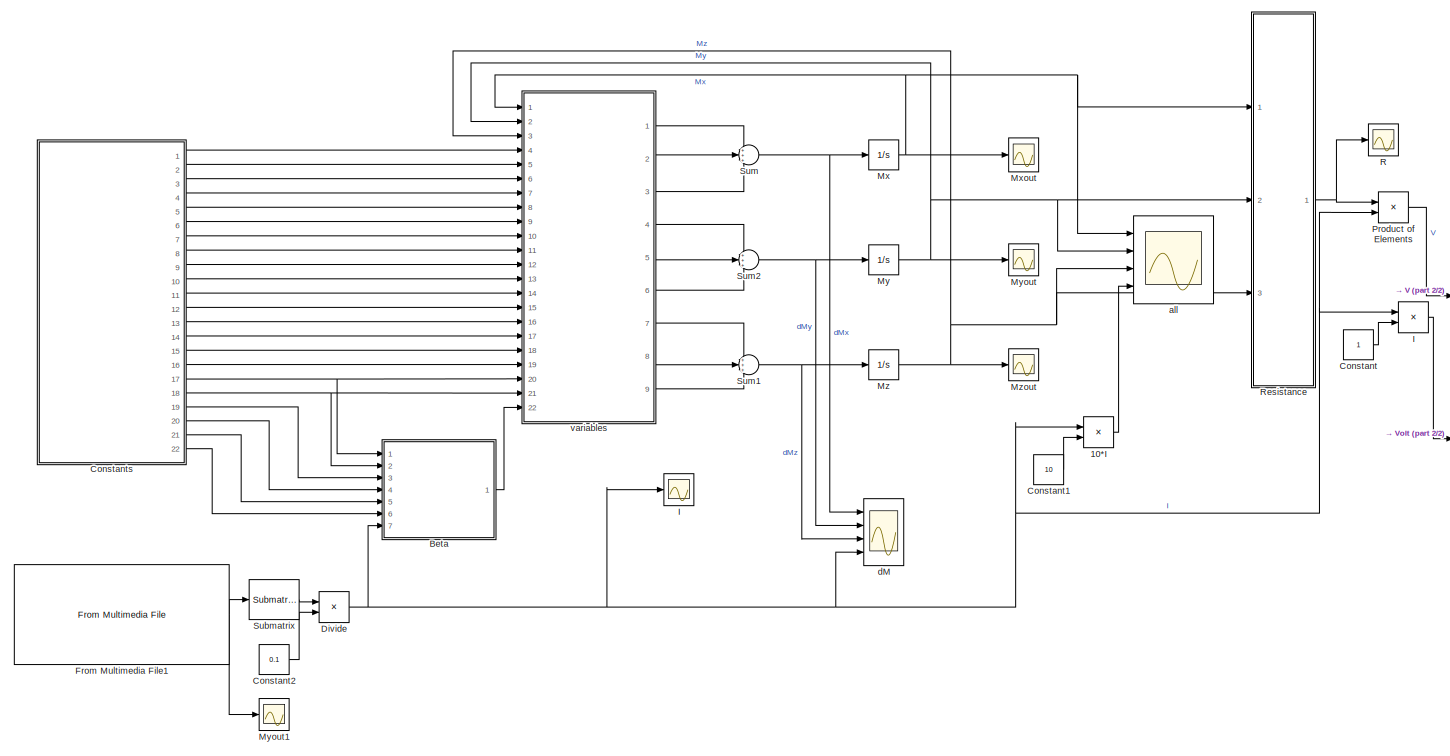
[diagram: root canvas - part 1/2, most of the canvas]
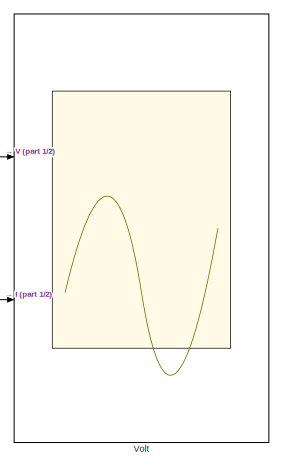
[diagram: root canvas - part 2/2, middle right region]
MODEL slx_35717b3a5d22
KIND model
CONFIG AbsTol = 1.0E-6
CONFIG EnableMultiTasking = off
CONFIG FixedStep = 1.0E-10
CONFIG MaxStep = 1.0E-10
CONFIG MinStep = auto
CONFIG RelTol = 1.0E-5
CONFIG SampleTimeConstraint = Unconstrained
CONFIG Solver = ode45
CONFIG SolverName = ode45
CONFIG StartTime = 0.0
CONFIG StopTime = 0.000000025
BLOCK [Product] 10*I
  InputSameDT = off
  OutDataTypeStr = Inherit: Inherit via internal rule
  Ports = [2, 1]
  RndMeth = Floor
  SaturateOnIntegerOverflow = off
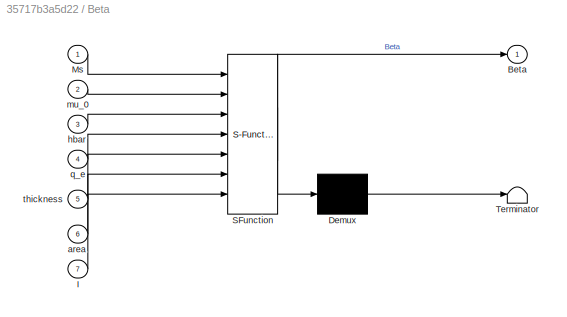
BLOCK [SubSystem] Beta
  ErrorFcn = Stateflow.Translate.translate
  PermitHierarchicalResolution = ExplicitOnly
  Ports = [7, 1]
  RequestExecContextInheritance = off
  SFBlockType = MATLAB Function
  TreatAsAtomicUnit = on
BLOCK [Demux] Beta/ Demux 
  Outputs = 1
  Ports = [1, 1]
BLOCK [S-Function] Beta/ SFunction 
  EnableBusSupport = on
  FunctionName = sf_sfun
  PortCounts = [7 2]
  Ports = [7, 2]
  SFcnIsStateOwnerBlock = off
  SFunctionDeploymentMode = off
  Tag = Stateflow S-Function 1
BLOCK [Terminator] Beta/ Terminator 
BLOCK [Outport] Beta/Beta
  IconDisplay = Port number
  VectorParamsAs1DForOutWhenUnconnected = off
BLOCK [Inport] Beta/I
  IconDisplay = Port number
  Port = 7
BLOCK [Inport] Beta/Ms
  IconDisplay = Port number
BLOCK [Inport] Beta/area
  IconDisplay = Port number
  Port = 6
BLOCK [Inport] Beta/hbar
  IconDisplay = Port number
  Port = 3
BLOCK [Inport] Beta/mu_0
  IconDisplay = Port number
  Port = 2
BLOCK [Inport] Beta/q_e
  IconDisplay = Port number
  Port = 4
BLOCK [Inport] Beta/thickness
  IconDisplay = Port number
  Port = 5
BLOCK [Constant] Constant
BLOCK [Constant] Constant1
  Value = 10
BLOCK [Constant] Constant2
  Value = 0.1
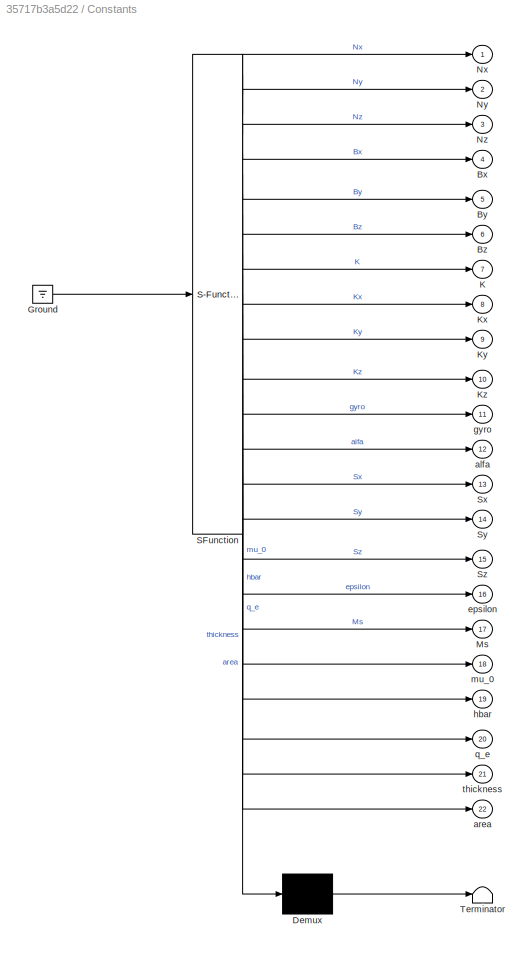
BLOCK [SubSystem] Constants
  ErrorFcn = Stateflow.Translate.translate
  PermitHierarchicalResolution = ExplicitOnly
  Ports = [0, 22]
  RequestExecContextInheritance = off
  SFBlockType = MATLAB Function
  TreatAsAtomicUnit = on
BLOCK [Demux] Constants/ Demux 
  Outputs = 1
  Ports = [1, 1]
BLOCK [Ground] Constants/ Ground 
BLOCK [S-Function] Constants/ SFunction 
  EnableBusSupport = on
  FunctionName = sf_sfun
  PortCounts = [1 23]
  Ports = [1, 23]
  SFcnIsStateOwnerBlock = off
  SFunctionDeploymentMode = off
  Tag = Stateflow S-Function 2
BLOCK [Terminator] Constants/ Terminator 
BLOCK [Outport] Constants/Bx
  IconDisplay = Port number
  Port = 4
BLOCK [Outport] Constants/By
  IconDisplay = Port number
  Port = 5
BLOCK [Outport] Constants/Bz
  IconDisplay = Port number
  Port = 6
BLOCK [Outport] Constants/K
  IconDisplay = Port number
  Port = 7
BLOCK [Outport] Constants/Kx
  IconDisplay = Port number
  Port = 8
BLOCK [Outport] Constants/Ky
  IconDisplay = Port number
  Port = 9
BLOCK [Outport] Constants/Kz
  IconDisplay = Port number
  Port = 10
BLOCK [Outport] Constants/Ms
  IconDisplay = Port number
  Port = 17
BLOCK [Outport] Constants/Nx
  IconDisplay = Port number
BLOCK [Outport] Constants/Ny
  IconDisplay = Port number
  Port = 2
BLOCK [Outport] Constants/Nz
  IconDisplay = Port number
  Port = 3
BLOCK [Outport] Constants/Sx
  IconDisplay = Port number
  Port = 13
BLOCK [Outport] Constants/Sy
  IconDisplay = Port number
  Port = 14
BLOCK [Outport] Constants/Sz
  IconDisplay = Port number
  Port = 15
BLOCK [Outport] Constants/alfa
  IconDisplay = Port number
  Port = 12
BLOCK [Outport] Constants/area
  IconDisplay = Port number
  Port = 22
BLOCK [Outport] Constants/epsilon
  IconDisplay = Port number
  Port = 16
BLOCK [Outport] Constants/gyro
  IconDisplay = Port number
  Port = 11
BLOCK [Outport] Constants/hbar
  IconDisplay = Port number
  Port = 19
BLOCK [Outport] Constants/mu_0
  IconDisplay = Port number
  Port = 18
BLOCK [Outport] Constants/q_e
  IconDisplay = Port number
  Port = 20
BLOCK [Outport] Constants/thickness
  IconDisplay = Port number
  Port = 21
BLOCK [Product] Divide
  InputSameDT = off
  OutDataTypeStr = Inherit: Inherit via internal rule
  Ports = [2, 1]
  RndMeth = Floor
  SaturateOnIntegerOverflow = off
BLOCK [Reference] From Multimedia File1  REF=dspvision/From Multimedia File
  Ports = [0, 1]
  SourceBlock = dspvision/From Multimedia File
  SourceProductBaseCode = DS
  SourceProductName = DSP System Toolbox
  SourceType = From Multimedia File
BLOCK [Scope] I
  Floating = off
  NumInputPorts = 1
  Ports = [1]
  ScopeSpecificationString = Simulink.scopes.TimeScopeBlockCfg('CurrentConfiguration', extmgr.ConfigurationSet(extmgr.Configuration('Core','General UI',true,'FigureColor',[1 1 1]),extmgr.Configuration('Core','Source UI',true),extmgr.Configuration('Sources','WiredSimulink',true,'DataLoggingVariableName','ScopeData2'),extmgr.Configuration('Visuals','Time Domain',true,'SerializedDisplays',{struct('MinYLimReal','-0.04639','MaxYLi...<+1605ch>
BLOCK [Product] I 
  InputSameDT = off
  OutDataTypeStr = Inherit: Inherit via internal rule
  Ports = [2, 1]
  RndMeth = Floor
  SaturateOnIntegerOverflow = off
BLOCK [Integrator] Mx
  AbsoluteTolerance = 1.0E-6
  IgnoreLimit = on
  InitialCondition = 0.0706
  Ports = [1, 1]
BLOCK [Scope] Mxout
  Commented = on
  Floating = off
  NumInputPorts = 1
  Ports = [1]
  ScopeSpecificationString = Simulink.scopes.TimeScopeBlockCfg('CurrentConfiguration', extmgr.ConfigurationSet(extmgr.Configuration('Core','General UI',true),extmgr.Configuration('Core','Source UI',true),extmgr.Configuration('Sources','WiredSimulink',true,'DataLoggingVariableName','ScopeData3'),extmgr.Configuration('Visuals','Time Domain',true,'SerializedDisplays',{struct('MinYLimReal','-1.24442','MaxYLimReal','1.22502','YLab...<+1432ch>
BLOCK [Integrator] My
  AbsoluteTolerance = 1.0E-6
  IgnoreLimit = on
  InitialCondition = 0.9950
  Ports = [1, 1]
BLOCK [Scope] Myout
  Commented = on
  Floating = off
  NumInputPorts = 1
  Ports = [1]
  ScopeSpecificationString = Simulink.scopes.TimeScopeBlockCfg('CurrentConfiguration', extmgr.ConfigurationSet(extmgr.Configuration('Core','General UI',true),extmgr.Configuration('Core','Source UI',true),extmgr.Configuration('Sources','WiredSimulink',true,'DataLoggingVariableName','ScopeData4'),extmgr.Configuration('Visuals','Time Domain',true,'SerializedDisplays',{struct('MinYLimReal','-1.1917','MaxYLimReal','1.24056','YLabe...<+1455ch>
BLOCK [Scope] Myout1
  Floating = off
  NumInputPorts = 1
  Ports = [1]
  ScopeSpecificationString = Simulink.scopes.TimeScopeBlockCfg('CurrentConfiguration', extmgr.ConfigurationSet(extmgr.Configuration('Core','General UI',true,'FigureColor',[1 1 1]),extmgr.Configuration('Core','Source UI',true),extmgr.Configuration('Sources','WiredSimulink',true,'DataLoggingVariableName','ScopeData1'),extmgr.Configuration('Visuals','Time Domain',true,'SerializedDisplays',{struct('MinYLimReal','-0.08092','MaxYLi...<+1934ch>
BLOCK [Integrator] Mz
  AbsoluteTolerance = 1.0E-6
  InitialCondition = 0.0707
  Ports = [1, 1]
BLOCK [Scope] Mzout
  Commented = on
  Floating = off
  NumInputPorts = 1
  Ports = [1]
  ScopeSpecificationString = Simulink.scopes.TimeScopeBlockCfg('CurrentConfiguration', extmgr.ConfigurationSet(extmgr.Configuration('Core','General UI',true),extmgr.Configuration('Core','Source UI',true),extmgr.Configuration('Sources','WiredSimulink',true,'DataLoggingVariableName','ScopeData5'),extmgr.Configuration('Visuals','Time Domain',true,'SerializedDisplays',{struct('MinYLimReal','0.01127','MaxYLimReal','1.18659','YLabe...<+1430ch>
BLOCK [Product] Product of Elements
  InputSameDT = off
  OutDataTypeStr = Inherit: Inherit via internal rule
  Ports = [2, 1]
  RndMeth = Floor
  SaturateOnIntegerOverflow = off
BLOCK [Scope] R
  Commented = on
  Floating = off
  NumInputPorts = 1
  Ports = [1]
  ScopeSpecificationString = Simulink.scopes.TimeScopeBlockCfg('CurrentConfiguration', extmgr.ConfigurationSet(extmgr.Configuration('Core','General UI',true),extmgr.Configuration('Core','Source UI',true),extmgr.Configuration('Sources','WiredSimulink',true,'DataLoggingVariableName','ScopeData1'),extmgr.Configuration('Visuals','Time Domain',true,'SerializedDisplays',{struct('MinYLimReal','-1.2447','MaxYLimReal','1.22514','YLabe...<+1499ch>
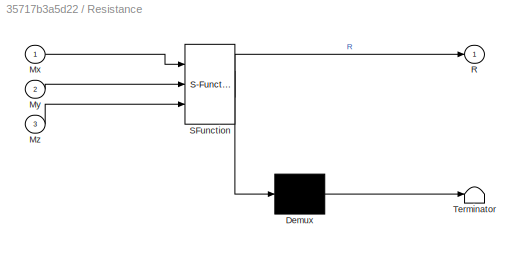
BLOCK [SubSystem] Resistance
  ErrorFcn = Stateflow.Translate.translate
  PermitHierarchicalResolution = ExplicitOnly
  Ports = [3, 1]
  RequestExecContextInheritance = off
  SFBlockType = MATLAB Function
  TreatAsAtomicUnit = on
BLOCK [Demux] Resistance/ Demux 
  Outputs = 1
  Ports = [1, 1]
BLOCK [S-Function] Resistance/ SFunction 
  EnableBusSupport = on
  FunctionName = sf_sfun
  PortCounts = [3 2]
  Ports = [3, 2]
  SFcnIsStateOwnerBlock = off
  SFunctionDeploymentMode = off
  Tag = Stateflow S-Function 3
BLOCK [Terminator] Resistance/ Terminator 
BLOCK [Inport] Resistance/Mx
  IconDisplay = Port number
BLOCK [Inport] Resistance/My
  IconDisplay = Port number
  Port = 2
BLOCK [Inport] Resistance/Mz
  IconDisplay = Port number
  Port = 3
BLOCK [Outport] Resistance/R
  IconDisplay = Port number
  VectorParamsAs1DForOutWhenUnconnected = off
BLOCK [Reference] Submatrix  REF=dspmtrx3/Submatrix
  Ports = [1, 1]
  SourceBlock = dspmtrx3/Submatrix
  SourceProductBaseCode = DS
  SourceProductName = DSP System Toolbox
  SourceType = Submatrix
BLOCK [Sum] Sum
  IconShape = round
  InputSameDT = off
  Inputs = +++
  OutDataTypeStr = Inherit: Inherit via internal rule
  Ports = [3, 1]
  SaturateOnIntegerOverflow = off
BLOCK [Sum] Sum1
  IconShape = round
  InputSameDT = off
  Inputs = +++
  OutDataTypeStr = Inherit: Inherit via internal rule
  Ports = [3, 1]
  SaturateOnIntegerOverflow = off
BLOCK [Sum] Sum2
  IconShape = round
  InputSameDT = off
  Inputs = +++
  OutDataTypeStr = Inherit: Inherit via internal rule
  Ports = [3, 1]
  SaturateOnIntegerOverflow = off
BLOCK [Scope] Volt
  Floating = off
  NumInputPorts = 2
  Ports = [2]
  ScopeSpecificationString = Simulink.scopes.TimeScopeBlockCfg('CurrentConfiguration', extmgr.ConfigurationSet(extmgr.Configuration('Core','General UI',true,'FigureColor',[1 1 1]),extmgr.Configuration('Core','Source UI',true),extmgr.Configuration('Sources','WiredSimulink',true,'DataLoggingVariableName','ScopeData1'),extmgr.Configuration('Visuals','Time Domain',true,'SerializedDisplays',{struct('MinYLimReal','-0.01143','MaxYLi...<+1712ch>
BLOCK [Scope] all
  Floating = off
  NumInputPorts = 4
  Ports = [4]
  ScopeSpecificationString = Simulink.scopes.TimeScopeBlockCfg('CurrentConfiguration', extmgr.ConfigurationSet(extmgr.Configuration('Core','General UI',true,'FigureColor',[1 1 1]),extmgr.Configuration('Core','Source UI',true),extmgr.Configuration('Sources','WiredSimulink',true),extmgr.Configuration('Visuals','Time Domain',true,'TimeAxisLabels','All','SerializedDisplays',{struct('MinYLimReal','-1.24975','MaxYLimReal','1.24976'...<+1937ch>
BLOCK [Scope] dM
  Commented = on
  Floating = off
  NumInputPorts = 4
  Ports = [4]
  ScopeSpecificationString = Simulink.scopes.TimeScopeBlockCfg('CurrentConfiguration', extmgr.ConfigurationSet(extmgr.Configuration('Core','General UI',true),extmgr.Configuration('Core','Source UI',true),extmgr.Configuration('Sources','WiredSimulink',true,'DataLoggingVariableName','ScopeData6'),extmgr.Configuration('Visuals','Time Domain',true,'SerializedDisplays',{struct('MinYLimReal','-163182514388.29102','MaxYLimReal','130...<+1652ch>
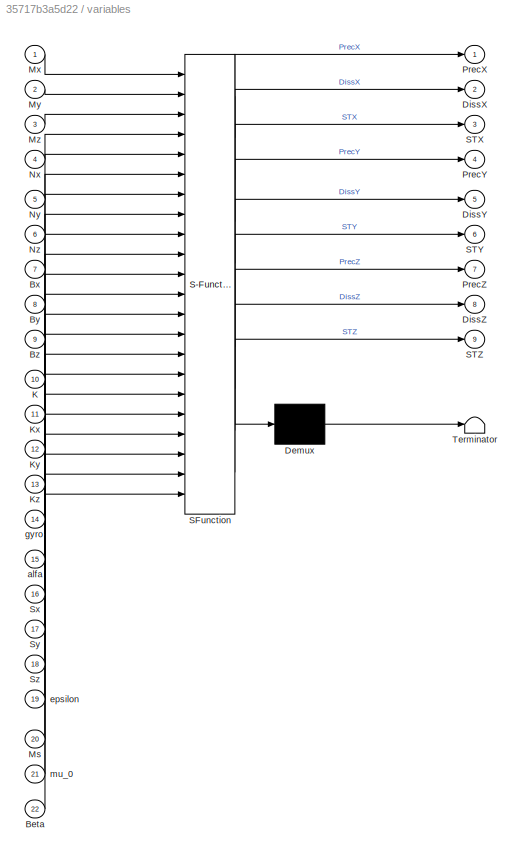
BLOCK [SubSystem] variables
  ErrorFcn = Stateflow.Translate.translate
  PermitHierarchicalResolution = ExplicitOnly
  Ports = [22, 9]
  RequestExecContextInheritance = off
  SFBlockType = MATLAB Function
  TreatAsAtomicUnit = on
BLOCK [Demux] variables/ Demux 
  Outputs = 1
  Ports = [1, 1]
BLOCK [S-Function] variables/ SFunction 
  EnableBusSupport = on
  FunctionName = sf_sfun
  PortCounts = [22 10]
  Ports = [22, 10]
  SFcnIsStateOwnerBlock = off
  SFunctionDeploymentMode = off
  Tag = Stateflow S-Function 5
BLOCK [Terminator] variables/ Terminator 
BLOCK [Inport] variables/Beta
  IconDisplay = Port number
  Port = 22
BLOCK [Inport] variables/Bx
  IconDisplay = Port number
  Port = 7
BLOCK [Inport] variables/By
  IconDisplay = Port number
  Port = 8
BLOCK [Inport] variables/Bz
  IconDisplay = Port number
  Port = 9
BLOCK [Outport] variables/DissX
  IconDisplay = Port number
  Port = 2
BLOCK [Outport] variables/DissY
  IconDisplay = Port number
  Port = 5
BLOCK [Outport] variables/DissZ
  IconDisplay = Port number
  Port = 8
BLOCK [Inport] variables/K
  IconDisplay = Port number
  Port = 10
BLOCK [Inport] variables/Kx
  IconDisplay = Port number
  Port = 11
BLOCK [Inport] variables/Ky
  IconDisplay = Port number
  Port = 12
BLOCK [Inport] variables/Kz
  IconDisplay = Port number
  Port = 13
BLOCK [Inport] variables/Ms
  IconDisplay = Port number
  Port = 20
BLOCK [Inport] variables/Mx
  IconDisplay = Port number
BLOCK [Inport] variables/My
  IconDisplay = Port number
  Port = 2
BLOCK [Inport] variables/Mz
  IconDisplay = Port number
  Port = 3
BLOCK [Inport] variables/Nx
  IconDisplay = Port number
  Port = 4
BLOCK [Inport] variables/Ny
  IconDisplay = Port number
  Port = 5
BLOCK [Inport] variables/Nz
  IconDisplay = Port number
  Port = 6
BLOCK [Outport] variables/PrecX
  IconDisplay = Port number
BLOCK [Outport] variables/PrecY
  IconDisplay = Port number
  Port = 4
BLOCK [Outport] variables/PrecZ
  IconDisplay = Port number
  Port = 7
BLOCK [Outport] variables/STX
  IconDisplay = Port number
  Port = 3
BLOCK [Outport] variables/STY
  IconDisplay = Port number
  Port = 6
BLOCK [Outport] variables/STZ
  IconDisplay = Port number
  Port = 9
BLOCK [Inport] variables/Sx
  IconDisplay = Port number
  Port = 16
BLOCK [Inport] variables/Sy
  IconDisplay = Port number
  Port = 17
BLOCK [Inport] variables/Sz
  IconDisplay = Port number
  Port = 18
BLOCK [Inport] variables/alfa
  IconDisplay = Port number
  Port = 15
BLOCK [Inport] variables/epsilon
  IconDisplay = Port number
  Port = 19
BLOCK [Inport] variables/gyro
  IconDisplay = Port number
  Port = 14
BLOCK [Inport] variables/mu_0
  IconDisplay = Port number
  Port = 21
LINE 10*I:1 -> all:4
LINE Beta:1 -> variables:22
LINE Constant1:1 -> 10*I:2
LINE Constant2:1 -> Divide:2
LINE Constant:1 -> I :2
LINE Constants:1 -> variables:4
LINE Constants:10 -> variables:13
LINE Constants:11 -> variables:14
LINE Constants:12 -> variables:15
LINE Constants:13 -> variables:16
LINE Constants:14 -> variables:17
LINE Constants:15 -> variables:18
LINE Constants:16 -> variables:19
NET Constants:17 -> Beta:1, variables:20
NET Constants:18 -> Beta:2, variables:21
LINE Constants:19 -> Beta:3
LINE Constants:2 -> variables:5
LINE Constants:20 -> Beta:4
LINE Constants:21 -> Beta:5
LINE Constants:22 -> Beta:6
LINE Constants:3 -> variables:6
LINE Constants:4 -> variables:7
LINE Constants:5 -> variables:8
LINE Constants:6 -> variables:9
LINE Constants:7 -> variables:10
LINE Constants:8 -> variables:11
LINE Constants:9 -> variables:12
NET Divide:1 -> 10*I:1, Beta:7, I :1, I:1, Product of Elements:2, dM:4
NET From Multimedia File1:1 -> Myout1:1, Submatrix:1
LINE I :1 -> Volt:2
NET Mx:1 -> Mxout:1, Resistance:1, all:1, variables:1
NET My:1 -> Myout:1, Resistance:2, all:2, variables:2
NET Mz:1 -> Mzout:1, Resistance:3, all:3, variables:3
LINE Product of Elements:1 -> Volt:1
NET Resistance:1 -> Product of Elements:1, R:1
LINE Submatrix:1 -> Divide:1
NET Sum1:1 -> Mz:1, dM:3
NET Sum2:1 -> My:1, dM:2
NET Sum:1 -> Mx:1, dM:1
LINE variables:1 -> Sum:1
LINE variables:2 -> Sum:2
LINE variables:3 -> Sum:3
LINE variables:4 -> Sum2:1
LINE variables:5 -> Sum2:2
LINE variables:6 -> Sum2:3
LINE variables:7 -> Sum1:1
LINE variables:8 -> Sum1:2
LINE variables:9 -> Sum1:3
note: NET lines group one-source signal fan-out (src -> all destinations, sorted); 1:1 wires keep LINE
CHART Beta states=1 transitions=1
  STATE_LABEL 'eML_blk_kernel()'
  STATE_LABEL 'SCRIPT:\nfunction Beta  = fcn(Ms, mu_0, hbar, q_e, thickness, area, I)\n%#codegen\n\nBeta   = I * hbar / (mu_0*q_e*thickness*area*Ms);'
CHART Constants states=1 transitions=1
  STATE_LABEL 'eML_blk_kernel()'
  STATE_LABEL 'SCRIPT:\nfunction [Nx,Ny,Nz, Bx,By,Bz, K, Kx,Ky,Kz, gyro, alfa, Sx,Sy,Sz, epsilon, Ms, mu_0, hbar, q_e, thickness, area]= Constants\n%#codegen\n%The simulation time. Oscillations happen in the GHz range, so simulation\n%time should be in the nanosecond range. \nMax_time = 20.0E-9;\n\n%This is material parameter for permalloy (a widely used magnetic material)\n%Leave this number unchanged\nMs = 8.6E+5;\n\n%Fu...<+905ch>'
CHART Resistance states=1 transitions=1
  STATE_LABEL 'eML_blk_kernel()'
  STATE_LABEL 'SCRIPT:\nfunction R = Resistance(Mx, My, Mz)\n%#codegen\n\nR=Mx./sqrt(Mx.^2+My.^2+Mz.^2);'
CHART variables states=1 transitions=1
  STATE_LABEL 'eML_blk_kernel()'
  STATE_LABEL 'SCRIPT:\nfunction [PrecX,DissX,STX, PrecY,DissY,STY, PrecZ,DissZ,STZ]= variables(Mx,My,Mz, Nx,Ny,Nz, Bx,By,Bz, K, Kx,Ky,Kz, gyro, alfa, Sx,Sy,Sz, epsilon, Ms, mu_0, Beta)\n%#codegen\n\nHx = -Nx*Mx*Ms + Bx/mu_0 + 2.0*K/(mu_0*Ms)*(Kx*Mx + Ky*My + Kz*Mz) * Kx;\nHy = -Ny*My*Ms + By/mu_0 + 2.0*K/(mu_0*Ms)*(Kx*Mx + Ky*My + Kz*Mz) * Ky;\nHz = -Nz*Mz*Ms + Bz/mu_0 + 2.0*K/(mu_0*Ms)*(Kx*Mx + Ky*My + Kz*Mz) * Kz;\n...<+497ch>'
